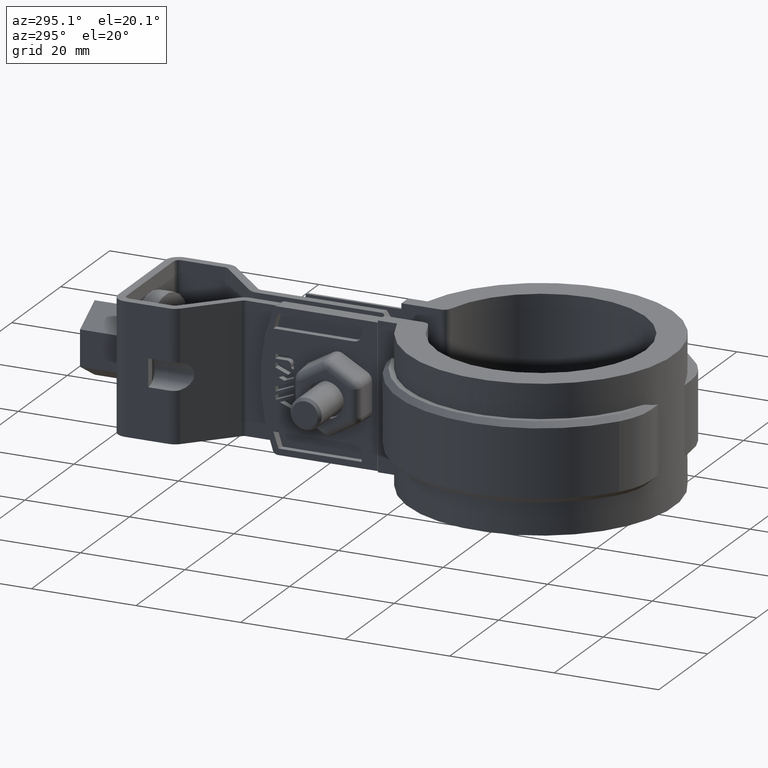
[diagram: clean part render]
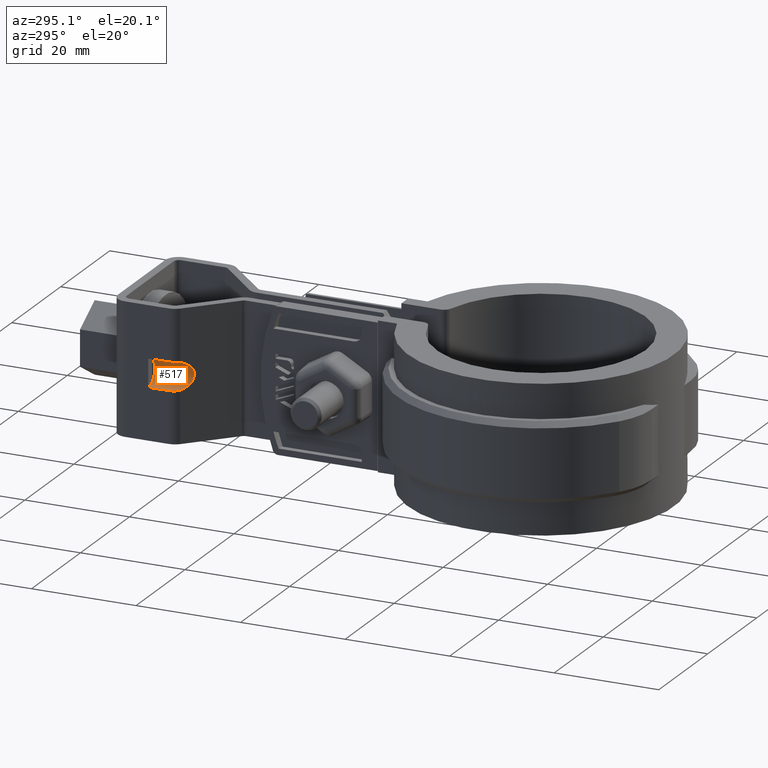
[diagram: same view with one face highlighted and labeled with its STEP entity id]
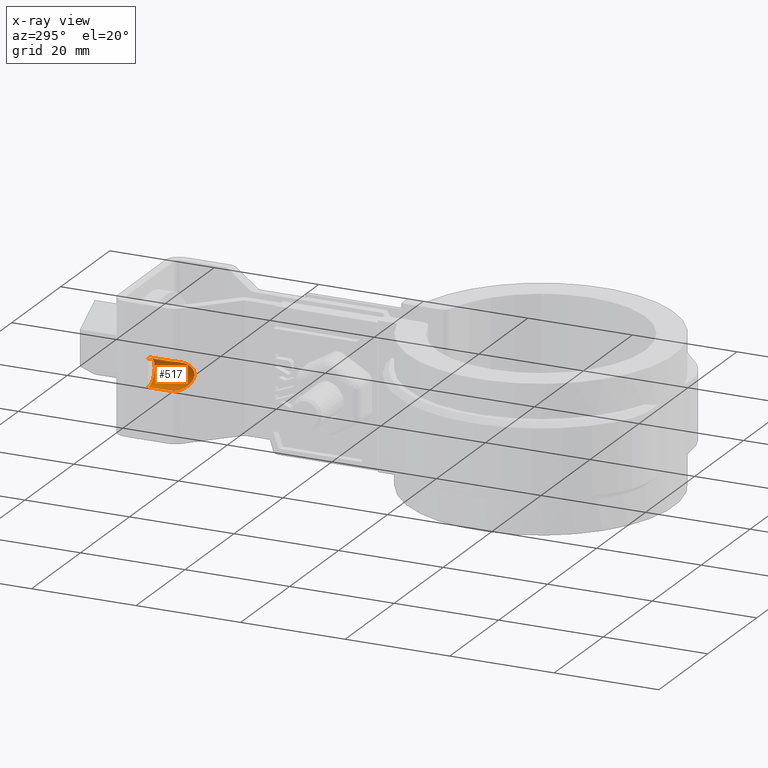
[diagram: x-ray of the same camera — body ghosted, the highlighted face saturated]
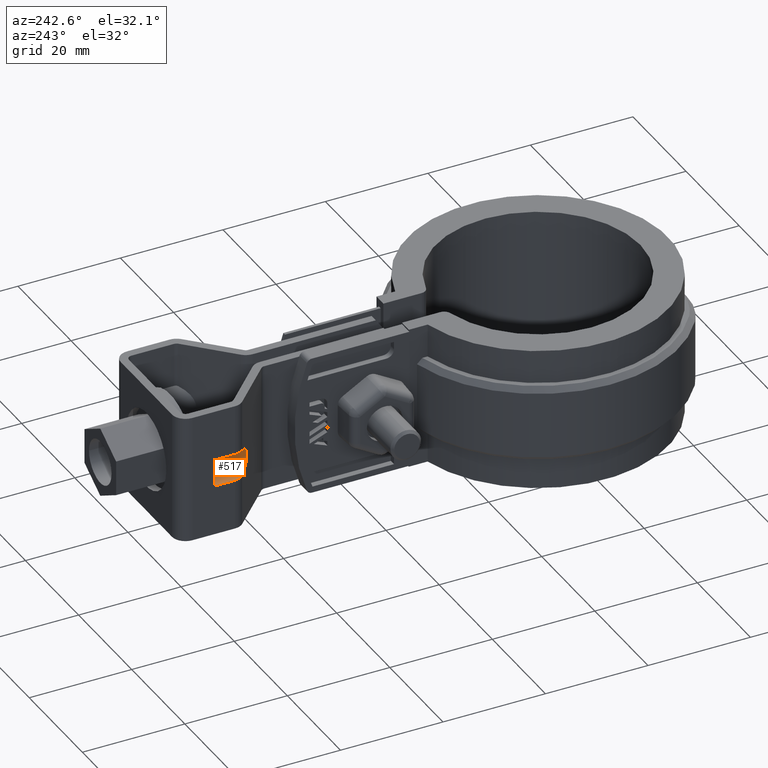
[diagram: same view with one face highlighted and labeled with its STEP entity id]
A machine part, auxiliary view. The second image highlights one B-rep face of the part: STEP entity #517.
The next image is the same camera in x-ray: the body ghosted, the highlighted face saturated — about 0% of this face is hidden behind the body in this view.
A second angle (auxiliary view) of the same face is appended — the face is thin or edge-on in the first view.
In plain terms, the highlighted cylindrical surface (edge-blend (fillet) strip) has radius 2.65 mm, axis along (0, -1, -0).
Its self-contained STEP definition (entity closure, byte-faithful):
#517 = ADVANCED_FACE( '', ( #1023 ), #1024, .F. );
#1023 = FACE_OUTER_BOUND( '', #2132, .T. );
#1024 = CYLINDRICAL_SURFACE( '', #2133, 2.64999999999997 );
#2132 = EDGE_LOOP( '', ( #5068, #5069, #5070, #5071, #5072, #5073, #5074, #5075 ) );
#2133 = AXIS2_PLACEMENT_3D( '', #5076, #5077, #5078 );
#5068 = ORIENTED_EDGE( '', *, *, #7073, .T. );
#5069 = ORIENTED_EDGE( '', *, *, #7074, .T. );
#5070 = ORIENTED_EDGE( '', *, *, #7075, .T. );
#5071 = ORIENTED_EDGE( '', *, *, #7076, .F. );
#5072 = ORIENTED_EDGE( '', *, *, #7071, .F. );
#5073 = ORIENTED_EDGE( '', *, *, #7077, .F. );
#5074 = ORIENTED_EDGE( '', *, *, #7078, .F. );
#5075 = ORIENTED_EDGE( '', *, *, #7079, .T. );
#5076 = CARTESIAN_POINT( '', ( -12.2499999999995, 59.4025110200040, -12.5000000000263 ) );
#5077 = DIRECTION( '', ( 9.21184560650170E-016, -1.00000000000000, -1.26121335597421E-013 ) );
#5078 = DIRECTION( '', ( 1.52568223233742E-014, -1.26121335597421E-013, 1.00000000000000 ) );
#7071 = EDGE_CURVE( '', #8339, #8341, #8342, .T. );
#7073 = EDGE_CURVE( '', #8344, #8345, #8346, .T. );
#7074 = EDGE_CURVE( '', #8345, #8347, #8348, .T. );
#7075 = EDGE_CURVE( '', #8347, #8349, #8350, .T. );
#7076 = EDGE_CURVE( '', #8341, #8349, #8351, .T. );
#7077 = EDGE_CURVE( '', #8352, #8339, #8353, .T. );
#7078 = EDGE_CURVE( '', #8354, #8352, #8355, .T. );
#7079 = EDGE_CURVE( '', #8354, #8344, #8356, .T. );
#8339 = VERTEX_POINT( '', #11808 );
#8341 = VERTEX_POINT( '', #11811 );
#8342 = CIRCLE( '', #11812, 2.64999999999997 );
#8344 = VERTEX_POINT( '', #11815 );
#8345 = VERTEX_POINT( '', #11816 );
#8346 = ELLIPSE( '', #11817, 3.70224472166266, 2.64999999999997 );
#8347 = VERTEX_POINT( '', #11818 );
#8348 = B_SPLINE_CURVE_WITH_KNOTS( '', 3, ( #11819, #11820, #11821, #11822, #11823, #11824, #11825, #11826 ), .UNSPECIFIED., .F., .F., ( 4, 2, 2, 4 ), ( 1.73472347597681E-018, 0.000516787748161287, 0.00103357549632257, 0.00206715099264518 ), .UNSPECIFIED. );
#8349 = VERTEX_POINT( '', #11827 );
#8350 = LINE( '', #11828, #11829 );
#8351 = CIRCLE( '', #11830, 2.64999999999997 );
#8352 = VERTEX_POINT( '', #11831 );
#8353 = CIRCLE( '', #11832, 2.64999999999997 );
#8354 = VERTEX_POINT( '', #11833 );
#8355 = LINE( '', #11834, #11835 );
#8356 = B_SPLINE_CURVE_WITH_KNOTS( '', 3, ( #11836, #11837, #11838, #11839, #11840, #11841, #11842, #11843, #11844, #11845 ), .UNSPECIFIED., .F., .F., ( 4, 2, 2, 2, 4 ), ( 0.000000000000000, 0.000517346174284563, 0.00103469234856913, 0.00155203852285369, 0.00206938469713825 ), .UNSPECIFIED. );
#11808 = CARTESIAN_POINT( '', ( -10.6499999999996, 69.4025110200043, -14.6124630174528 ) );
#11811 = CARTESIAN_POINT( '', ( -10.6499999999996, 69.4025110200038, -10.3875369825972 ) );
#11812 = AXIS2_PLACEMENT_3D( '', #13612, #13613, #13614 );
#11815 = CARTESIAN_POINT( '', ( -11.4656419723788, 63.6372837113706, -15.0312610463240 ) );
#11816 = CARTESIAN_POINT( '', ( -11.4656419723789, 63.6372837113700, -9.96873895372749 ) );
#11817 = AXIS2_PLACEMENT_3D( '', #13616, #13617, #13618 );
#11818 = CARTESIAN_POINT( '', ( -12.2499999999996, 65.4983168191180, -9.85000000002553 ) );
#11819 = CARTESIAN_POINT( '', ( -11.4656419723789, 63.6372837113700, -9.96873895372748 ) );
#11820 = CARTESIAN_POINT( '', ( -11.5880007594306, 63.7566581322417, -9.93082382165751 ) );
#11821 = CARTESIAN_POINT( '', ( -11.6979909725811, 63.8873570976110, -9.90626133021580 ) );
#11822 = CARTESIAN_POINT( '', ( -11.8919853000431, 64.1705517184763, -9.87244986192481 ) );
#11823 = CARTESIAN_POINT( '', ( -11.9765770457455, 64.3248769170093, -9.86327473214269 ) );
#11824 = CARTESIAN_POINT( '', ( -12.1789956025114, 64.8027098488493, -9.84749564067766 ) );
#11825 = CARTESIAN_POINT( '', ( -12.2499999999996, 65.1487749770708, -9.85000000002558 ) );
#11826 = CARTESIAN_POINT( '', ( -12.2499999999996, 65.4983168191180, -9.85000000002553 ) );
#11827 = CARTESIAN_POINT( '', ( -12.2499999999996, 69.4025110200037, -9.85000000002503 ) );
#11828 = CARTESIAN_POINT( '', ( -12.2499999999996, 59.4025110200037, -9.85000000002630 ) );
#11829 = VECTOR( '', #13619, 1000.00000000000 );
#11830 = AXIS2_PLACEMENT_3D( '', #13620, #13621, #13622 );
#11831 = CARTESIAN_POINT( '', ( -12.2499999999996, 69.4025110200043, -15.1500000000250 ) );
#11832 = AXIS2_PLACEMENT_3D( '', #13623, #13624, #13625 );
#11833 = CARTESIAN_POINT( '', ( -12.2499999999995, 65.4983168191187, -15.1500000000255 ) );
#11834 = CARTESIAN_POINT( '', ( -12.2499999999995, 59.4025110200043, -15.1500000000262 ) );
#11835 = VECTOR( '', #13626, 1000.00000000000 );
#11836 = CARTESIAN_POINT( '', ( -12.2499999999995, 65.4983168191187, -15.1500000000255 ) );
#11837 = CARTESIAN_POINT( '', ( -12.2499999999995, 65.3234267548705, -15.1500000000255 ) );
#11838 = CARTESIAN_POINT( '', ( -12.2325330354078, 65.1514843469649, -15.1501636960303 ) );
#11839 = CARTESIAN_POINT( '', ( -12.1640563524471, 64.8132691569568, -15.1488273632033 ) );
#11840 = CARTESIAN_POINT( '', ( -12.1121297117025, 64.6451383086748, -15.1472759528903 ) );
#11841 = CARTESIAN_POINT( '', ( -11.9772119360844, 64.3261048534409, -15.1367906362340 ) );
#11842 = CARTESIAN_POINT( '', ( -11.8947254704606, 64.1750936340896, -15.1279277835084 ) );
#11843 = CARTESIAN_POINT( '', ( -11.7003962036486, 63.8903406242711, -15.0942552098260 ) );
#11844 = CARTESIAN_POINT( '', ( -11.5880224298576, 63.7566792741214, -15.0691828933763 ) );
#11845 = CARTESIAN_POINT( '', ( -11.4656419723788, 63.6372837113706, -15.0312610463240 ) );
#13612 = CARTESIAN_POINT( '', ( -12.2499999999995, 69.4025110200040, -12.5000000000250 ) );
#13613 = DIRECTION( '', ( 9.21184560650170E-016, -1.00000000000000, -1.26121335597421E-013 ) );
#13614 = DIRECTION( '', ( -6.34539454728065E-015, -1.26121335597421E-013, 1.00000000000000 ) );
#13616 = CARTESIAN_POINT( '', ( -12.2499999999995, 64.4025110200042, -12.5000000000256 ) );
#13617 = DIRECTION( '', ( -0.698323835530498, -0.715781964518507, -9.42898977778803E-014 ) );
#13618 = DIRECTION( '', ( -0.715781964518507, 0.698323835530498, 8.39586511996701E-014 ) );
#13619 = DIRECTION( '', ( -9.21184560650170E-016, 1.00000000000000, 1.26121335597421E-013 ) );
#13620 = CARTESIAN_POINT( '', ( -12.2499999999995, 69.4025110200040, -12.5000000000250 ) );
#13621 = DIRECTION( '', ( 9.21184560650170E-016, -1.00000000000000, -1.26121335597421E-013 ) );
#13622 = DIRECTION( '', ( -6.34539454728065E-015, -1.26121335597421E-013, 1.00000000000000 ) );
#13623 = CARTESIAN_POINT( '', ( -12.2499999999995, 69.4025110200040, -12.5000000000250 ) );
#13624 = DIRECTION( '', ( 9.21184560650170E-016, -1.00000000000000, -1.26121335597421E-013 ) );
#13625 = DIRECTION( '', ( -6.34539454728065E-015, -1.26121335597421E-013, 1.00000000000000 ) );
#13626 = DIRECTION( '', ( -9.21184560650170E-016, 1.00000000000000, 1.26121335597421E-013 ) );